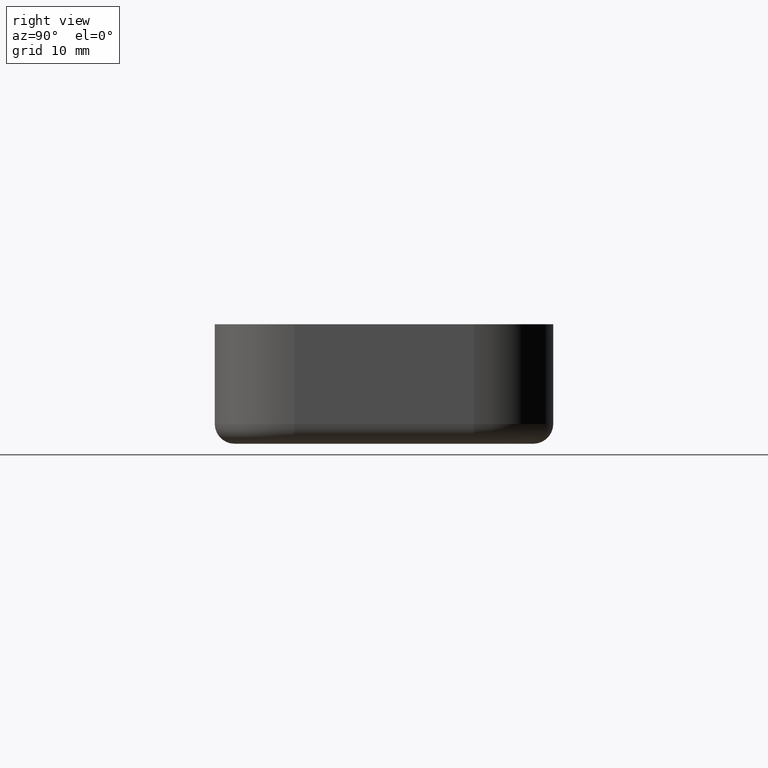
[diagram: clean part render]
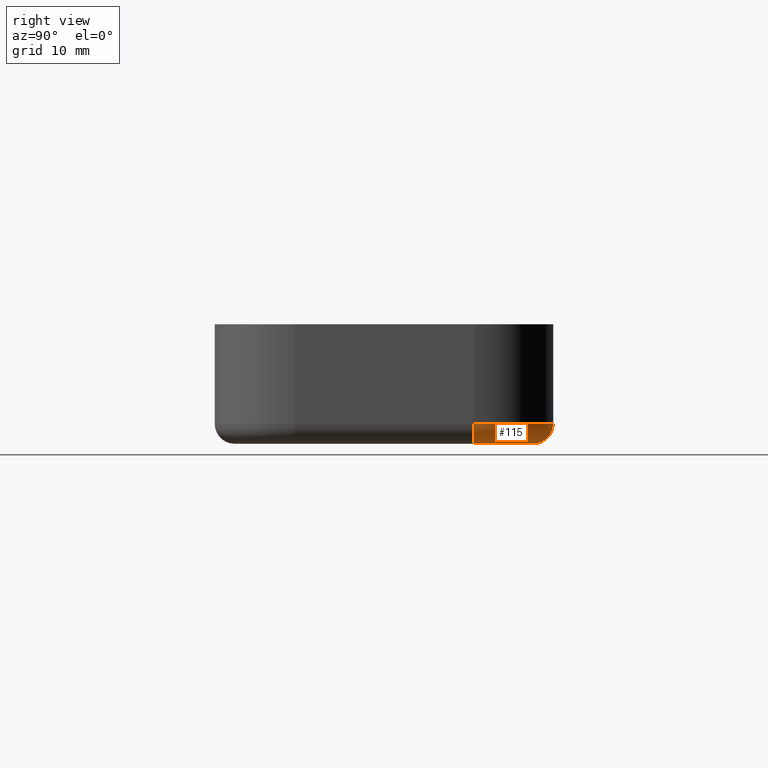
[diagram: same view with one face highlighted and labeled with its STEP entity id]
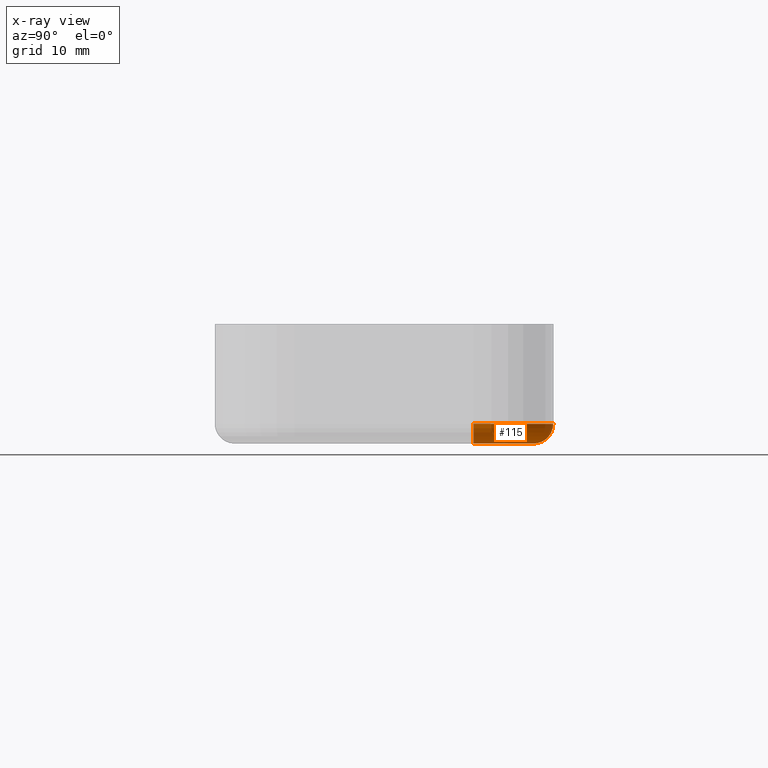
[diagram: x-ray of the same camera — body ghosted, the highlighted face saturated]
A machine part, right view. The second image highlights one B-rep face of the part: STEP entity #115.
The next image is the same camera in x-ray: the body ghosted, the highlighted face saturated — about 0% of this face is hidden behind the body in this view.
In plain terms, the highlighted toroidal blend (fillet) surface has major radius 6 mm and minor (blend) radius 2 mm.
Its self-contained STEP definition (entity closure, byte-faithful):
#115 = ADVANCED_FACE( '', ( #228 ), #229, .T. );
#228 = FACE_OUTER_BOUND( '', #371, .T. );
#229 = TOROIDAL_SURFACE( '', #372, 6.00000000000000, 2.00000000000000 );
#371 = EDGE_LOOP( '', ( #783, #784, #785, #786 ) );
#372 = AXIS2_PLACEMENT_3D( '', #787, #788, #789 );
#783 = ORIENTED_EDGE( '', *, *, #1147, .T. );
#784 = ORIENTED_EDGE( '', *, *, #1085, .F. );
#785 = ORIENTED_EDGE( '', *, *, #1145, .F. );
#786 = ORIENTED_EDGE( '', *, *, #1130, .F. );
#787 = CARTESIAN_POINT( '', ( 24.0000000000000, 9.00000000000000, -10.0000000000000 ) );
#788 = DIRECTION( '', ( 0.000000000000000, 0.000000000000000, -1.00000000000000 ) );
#789 = DIRECTION( '', ( -1.00000000000000, 0.000000000000000, 0.000000000000000 ) );
#1085 = EDGE_CURVE( '', #1337, #1339, #1340, .T. );
#1130 = EDGE_CURVE( '', #1408, #1411, #1412, .F. );
#1145 = EDGE_CURVE( '', #1411, #1337, #1429, .T. );
#1147 = EDGE_CURVE( '', #1408, #1339, #1431, .T. );
#1337 = VERTEX_POINT( '', #1669 );
#1339 = VERTEX_POINT( '', #1672 );
#1340 = CIRCLE( '', #1673, 6.00000000000000 );
#1408 = VERTEX_POINT( '', #1769 );
#1411 = VERTEX_POINT( '', #1774 );
#1412 = CIRCLE( '', #1775, 8.00000000000000 );
#1429 = CIRCLE( '', #1800, 2.00000000000000 );
#1431 = CIRCLE( '', #1802, 2.00000000000000 );
#1669 = CARTESIAN_POINT( '', ( 24.0000000000000, 15.0000000000000, -12.0000000000000 ) );
#1672 = CARTESIAN_POINT( '', ( 30.0000000000000, 9.00000000000000, -12.0000000000000 ) );
#1673 = AXIS2_PLACEMENT_3D( '', #2009, #2010, #2011 );
#1769 = CARTESIAN_POINT( '', ( 32.0000000000000, 9.00000000000000, -10.0000000000000 ) );
#1774 = CARTESIAN_POINT( '', ( 24.0000000000000, 17.0000000000000, -10.0000000000000 ) );
#1775 = AXIS2_PLACEMENT_3D( '', #2084, #2085, #2086 );
#1800 = AXIS2_PLACEMENT_3D( '', #2113, #2114, #2115 );
#1802 = AXIS2_PLACEMENT_3D( '', #2119, #2120, #2121 );
#2009 = CARTESIAN_POINT( '', ( 24.0000000000000, 9.00000000000000, -12.0000000000000 ) );
#2010 = DIRECTION( '', ( 0.000000000000000, 0.000000000000000, -1.00000000000000 ) );
#2011 = DIRECTION( '', ( -1.00000000000000, 0.000000000000000, 0.000000000000000 ) );
#2084 = CARTESIAN_POINT( '', ( 24.0000000000000, 9.00000000000000, -10.0000000000000 ) );
#2085 = DIRECTION( '', ( 0.000000000000000, 0.000000000000000, -1.00000000000000 ) );
#2086 = DIRECTION( '', ( -1.00000000000000, 0.000000000000000, 0.000000000000000 ) );
#2113 = CARTESIAN_POINT( '', ( 24.0000000000000, 15.0000000000000, -10.0000000000000 ) );
#2114 = DIRECTION( '', ( -1.00000000000000, 0.000000000000000, 0.000000000000000 ) );
#2115 = DIRECTION( '', ( 0.000000000000000, 0.000000000000000, 1.00000000000000 ) );
#2119 = CARTESIAN_POINT( '', ( 30.0000000000000, 9.00000000000000, -10.0000000000000 ) );
#2120 = DIRECTION( '', ( 0.000000000000000, 1.00000000000000, 0.000000000000000 ) );
#2121 = DIRECTION( '', ( 0.000000000000000, 0.000000000000000, 1.00000000000000 ) );